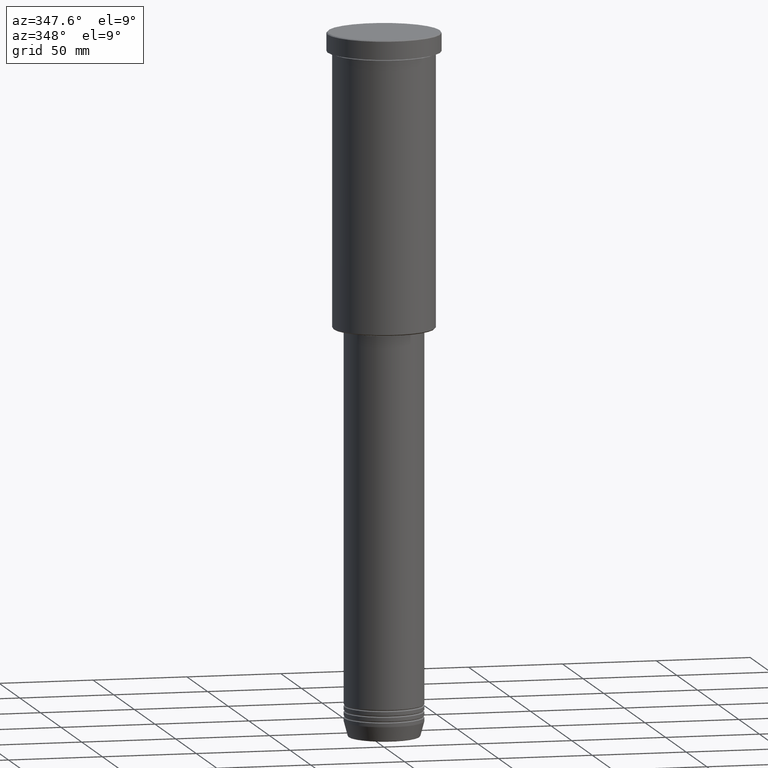
[diagram: clean part render]
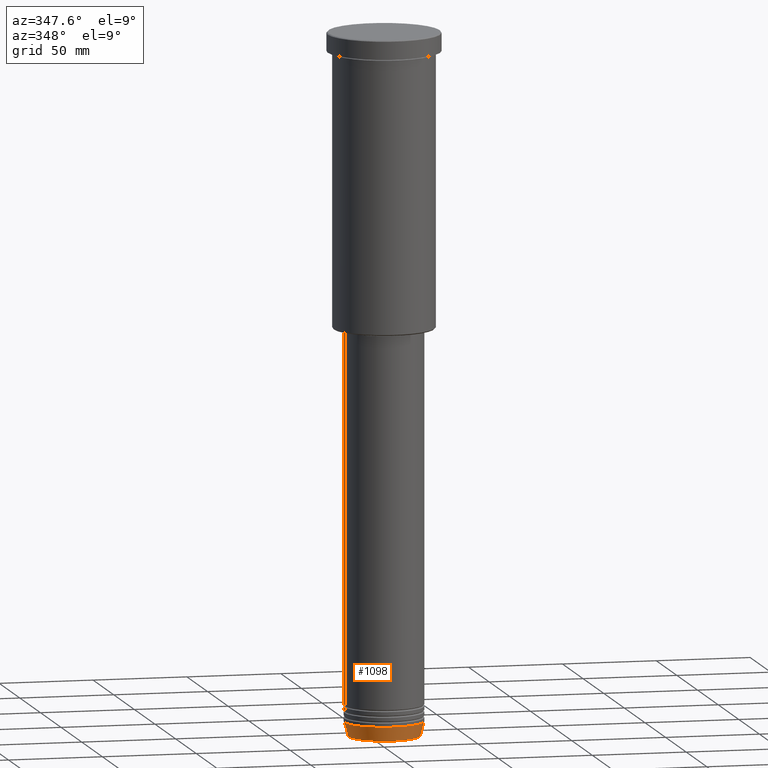
[diagram: same view with one face highlighted and labeled with its STEP entity id]
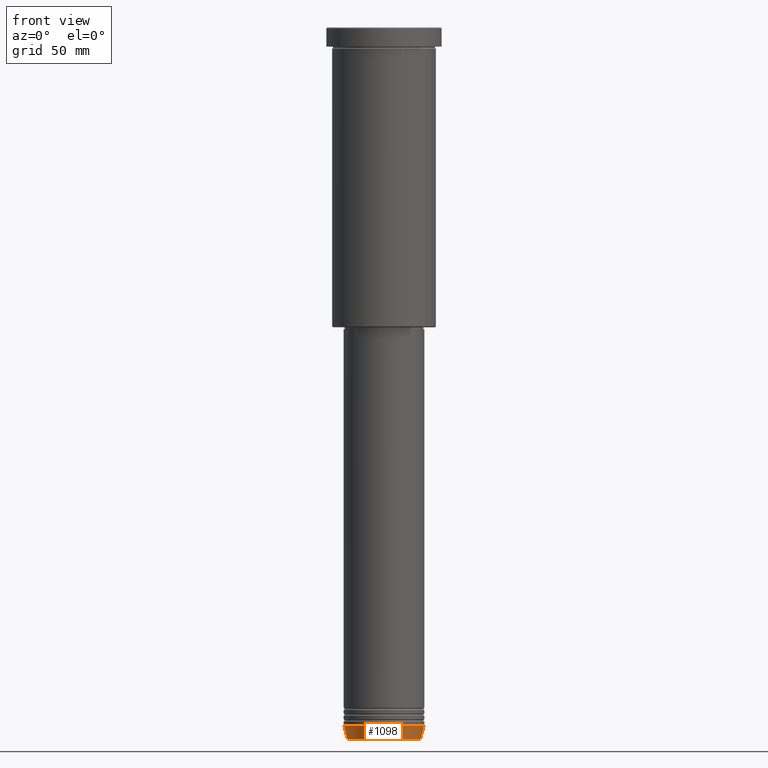
[diagram: same view with one face highlighted and labeled with its STEP entity id]
A machine part, auxiliary view. The second image highlights one B-rep face of the part: STEP entity #1098.
A second angle (front view) of the same face is appended — the face is thin or edge-on in the first view.
In plain terms, the highlighted conical surface has half-angle 15 deg.
Its self-contained STEP definition (entity closure, byte-faithful):
#51 = DIRECTION ( 'NONE',  ( 0.2588190451025209060, 0.000000000000000000, 0.9659258262890682012 ) ) ;
#52 = ORIENTED_EDGE ( 'NONE', *, *, #414, .F. ) ;
#118 = DIRECTION ( 'NONE',  ( -0.000000000000000000, -0.000000000000000000, 1.000000000000000000 ) ) ;
#122 = EDGE_CURVE ( 'NONE', #1064, #270, #323, .T. ) ;
#135 = CIRCLE ( 'NONE', #997, 18.95570587970607335 ) ;
#270 = VERTEX_POINT ( 'NONE', #808 ) ;
#316 = DIRECTION ( 'NONE',  ( -0.000000000000000000, -0.000000000000000000, 1.000000000000000000 ) ) ;
#323 = LINE ( 'NONE', #692, #1013 ) ;
#410 = CARTESIAN_POINT ( 'NONE',  ( -18.95570587970607335, 2.446581365662756125E-15, -370.6294095225512137 ) ) ;
#414 = EDGE_CURVE ( 'NONE', #705, #471, #1114, .T. ) ;
#463 = DIRECTION ( 'NONE',  ( 1.000000000000000000, 0.000000000000000000, 0.000000000000000000 ) ) ;
#471 = VERTEX_POINT ( 'NONE', #482 ) ;
#482 = CARTESIAN_POINT ( 'NONE',  ( -21.00000000000000000, 2.571758278209441661E-15, -362.9999999999999432 ) ) ;
#489 = CIRCLE ( 'NONE', #1146, 21.00000000000000000 ) ;
#507 = VECTOR ( 'NONE', #845, 1000.000000000000000 ) ;
#626 = EDGE_LOOP ( 'NONE', ( #52, #777, #844, #894 ) ) ;
#690 = DIRECTION ( 'NONE',  ( 1.000000000000000000, 0.000000000000000000, 0.000000000000000000 ) ) ;
#692 = CARTESIAN_POINT ( 'NONE',  ( 21.00000000000000000, 0.000000000000000000, -362.9999999999999432 ) ) ;
#705 = VERTEX_POINT ( 'NONE', #410 ) ;
#777 = ORIENTED_EDGE ( 'NONE', *, *, #953, .T. ) ;
#808 = CARTESIAN_POINT ( 'NONE',  ( 21.00000000000000000, 0.000000000000000000, -362.9999999999999432 ) ) ;
#844 = ORIENTED_EDGE ( 'NONE', *, *, #122, .T. ) ;
#845 = DIRECTION ( 'NONE',  ( -0.2588190451025209060, 3.169619151431766790E-17, 0.9659258262890682012 ) ) ;
#894 = ORIENTED_EDGE ( 'NONE', *, *, #954, .F. ) ;
#897 = AXIS2_PLACEMENT_3D ( 'NONE', #1056, #316, #690 ) ;
#913 = CARTESIAN_POINT ( 'NONE',  ( -21.00000000000000000, 2.571758278209441661E-15, -362.9999999999999432 ) ) ;
#939 = CONICAL_SURFACE ( 'NONE', #897, 21.00000000000000000, 0.2617993877991495744 ) ;
#944 = CARTESIAN_POINT ( 'NONE',  ( 0.000000000000000000, 0.000000000000000000, -362.9999999999999432 ) ) ;
#953 = EDGE_CURVE ( 'NONE', #705, #1064, #135, .T. ) ;
#954 = EDGE_CURVE ( 'NONE', #471, #270, #489, .T. ) ;
#976 = FACE_OUTER_BOUND ( 'NONE', #626, .T. ) ;
#997 = AXIS2_PLACEMENT_3D ( 'NONE', #1029, #1039, #1024 ) ;
#1013 = VECTOR ( 'NONE', #51, 1000.000000000000000 ) ;
#1024 = DIRECTION ( 'NONE',  ( 1.000000000000000000, 0.000000000000000000, 0.000000000000000000 ) ) ;
#1029 = CARTESIAN_POINT ( 'NONE',  ( 0.000000000000000000, 0.000000000000000000, -370.6294095225512137 ) ) ;
#1039 = DIRECTION ( 'NONE',  ( -0.000000000000000000, -0.000000000000000000, 1.000000000000000000 ) ) ;
#1056 = CARTESIAN_POINT ( 'NONE',  ( 0.000000000000000000, 0.000000000000000000, -362.9999999999999432 ) ) ;
#1064 = VERTEX_POINT ( 'NONE', #1135 ) ;
#1098 = ADVANCED_FACE ( 'NONE', ( #976 ), #939, .T. ) ;
#1114 = LINE ( 'NONE', #913, #507 ) ;
#1135 = CARTESIAN_POINT ( 'NONE',  ( 18.95570587970607335, 0.000000000000000000, -370.6294095225512137 ) ) ;
#1146 = AXIS2_PLACEMENT_3D ( 'NONE', #944, #118, #463 ) ;